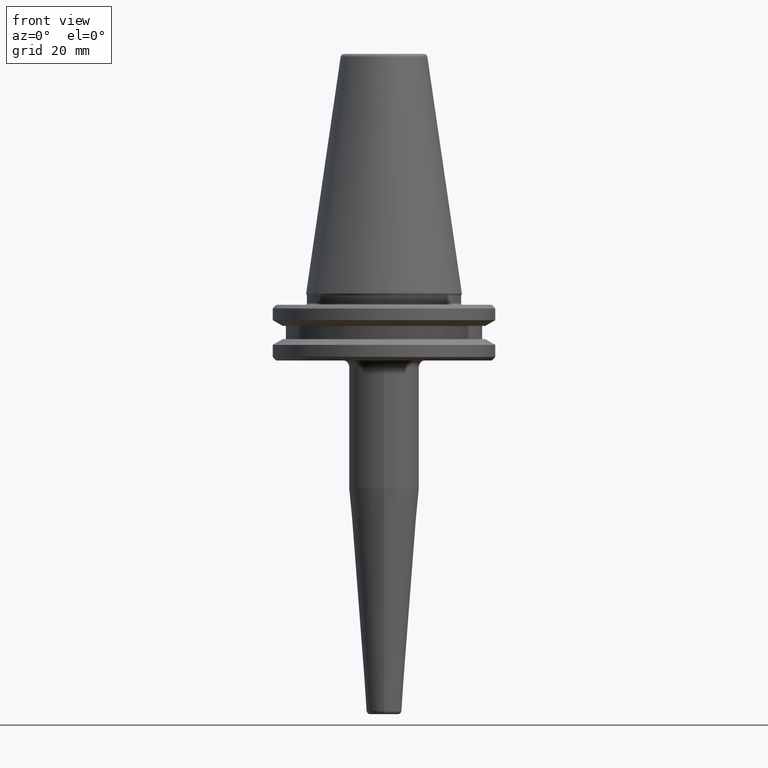
[diagram: clean part render]
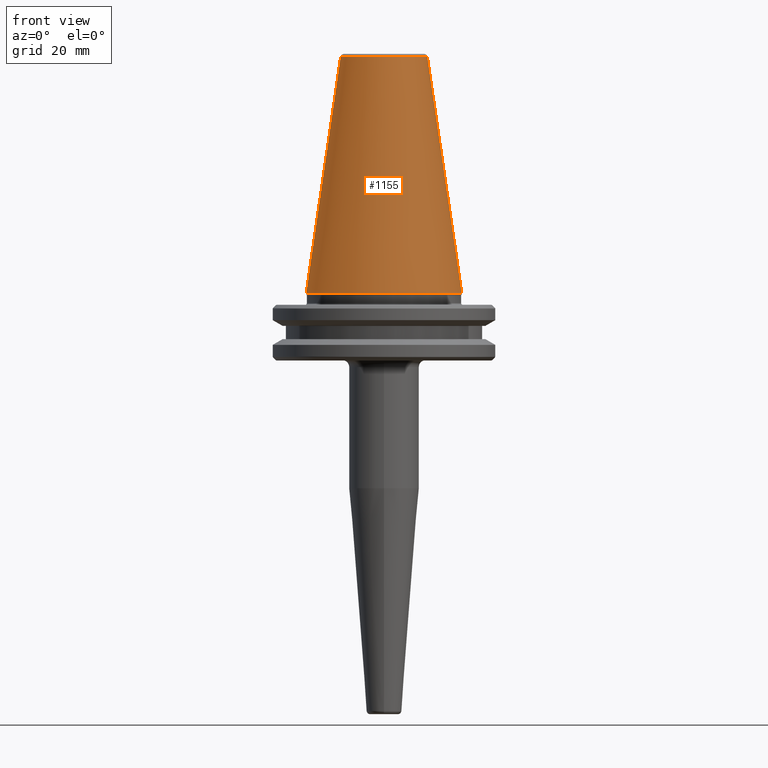
[diagram: same view with one face highlighted and labeled with its STEP entity id]
A machine part, front view. The second image highlights one B-rep face of the part: STEP entity #1155.
In plain terms, the highlighted conical surface has half-angle 8.297 deg.
Its self-contained STEP definition (entity closure, byte-faithful):
#10 = DIRECTION ( 'NONE',  ( -0.1443082272673071000, 0.0000000000000000000, -0.9895327864921743500 ) ) ;
#40 = LINE ( 'NONE', #521, #1258 ) ;
#45 = EDGE_CURVE ( 'NONE', #839, #949, #332, .T. ) ;
#64 = CIRCLE ( 'NONE', #827, 22.22500000000000500 ) ;
#90 = EDGE_LOOP ( 'NONE', ( #646, #107, #165, #163 ) ) ;
#107 = ORIENTED_EDGE ( 'NONE', *, *, #45, .F. ) ;
#121 = CARTESIAN_POINT ( 'NONE',  ( 0.0000000000000000000, 0.0000000000000000000, 67.54430822726729400 ) ) ;
#163 = ORIENTED_EDGE ( 'NONE', *, *, #990, .T. ) ;
#165 = ORIENTED_EDGE ( 'NONE', *, *, #996, .T. ) ;
#223 = CARTESIAN_POINT ( 'NONE',  ( 22.22500000000000500, 0.0000000000000000000, 0.0000000000000000000 ) ) ;
#307 = CARTESIAN_POINT ( 'NONE',  ( -12.37469537611110800, 0.0000000000000000000, 67.54430822726729400 ) ) ;
#332 = CIRCLE ( 'NONE', #1053, 12.37469537611110800 ) ;
#333 = VECTOR ( 'NONE', #10, 1000.000000000000000 ) ;
#394 = CARTESIAN_POINT ( 'NONE',  ( -12.37469537611110800, 0.0000000000000000000, 67.54430822726729400 ) ) ;
#410 = DIRECTION ( 'NONE',  ( -0.0000000000000000000, -0.0000000000000000000, 1.000000000000000000 ) ) ;
#419 = DIRECTION ( 'NONE',  ( 1.000000000000000000, 0.0000000000000000000, 0.0000000000000000000 ) ) ;
#470 = AXIS2_PLACEMENT_3D ( 'NONE', #121, #702, #1188 ) ;
#521 = CARTESIAN_POINT ( 'NONE',  ( 12.37469537611110800, 1.515463108277802100E-015, 67.54430822726729400 ) ) ;
#525 = DIRECTION ( 'NONE',  ( -0.0000000000000000000, -0.0000000000000000000, 1.000000000000000000 ) ) ;
#607 = CARTESIAN_POINT ( 'NONE',  ( 12.37469537611110800, 2.118620309691397700E-015, 67.54430822726729400 ) ) ;
#646 = ORIENTED_EDGE ( 'NONE', *, *, #1105, .F. ) ;
#702 = DIRECTION ( 'NONE',  ( 0.0000000000000000000, 0.0000000000000000000, -1.000000000000000000 ) ) ;
#805 = CARTESIAN_POINT ( 'NONE',  ( -22.22500000000000500, 2.721777511104993200E-015, 0.0000000000000000000 ) ) ;
#812 = LINE ( 'NONE', #307, #333 ) ;
#827 = AXIS2_PLACEMENT_3D ( 'NONE', #984, #410, #1078 ) ;
#839 = VERTEX_POINT ( 'NONE', #394 ) ;
#941 = CONICAL_SURFACE ( 'NONE', #470, 12.37469537611110800, 0.1448138465474191100 ) ;
#949 = VERTEX_POINT ( 'NONE', #607 ) ;
#971 = FACE_OUTER_BOUND ( 'NONE', #90, .T. ) ;
#984 = CARTESIAN_POINT ( 'NONE',  ( 0.0000000000000000000, 0.0000000000000000000, 0.0000000000000000000 ) ) ;
#990 = EDGE_CURVE ( 'NONE', #1224, #1159, #64, .T. ) ;
#996 = EDGE_CURVE ( 'NONE', #839, #1224, #812, .T. ) ;
#1053 = AXIS2_PLACEMENT_3D ( 'NONE', #1089, #525, #419 ) ;
#1078 = DIRECTION ( 'NONE',  ( 1.000000000000000000, 0.0000000000000000000, 0.0000000000000000000 ) ) ;
#1089 = CARTESIAN_POINT ( 'NONE',  ( 0.0000000000000000000, 0.0000000000000000000, 67.54430822726729400 ) ) ;
#1092 = DIRECTION ( 'NONE',  ( 0.1443082272673071000, 1.767266086135364600E-017, -0.9895327864921743500 ) ) ;
#1105 = EDGE_CURVE ( 'NONE', #949, #1159, #40, .T. ) ;
#1155 = ADVANCED_FACE ( 'NONE', ( #971 ), #941, .T. ) ;
#1159 = VERTEX_POINT ( 'NONE', #223 ) ;
#1188 = DIRECTION ( 'NONE',  ( -1.000000000000000000, 0.0000000000000000000, 0.0000000000000000000 ) ) ;
#1224 = VERTEX_POINT ( 'NONE', #805 ) ;
#1258 = VECTOR ( 'NONE', #1092, 1000.000000000000000 ) ;